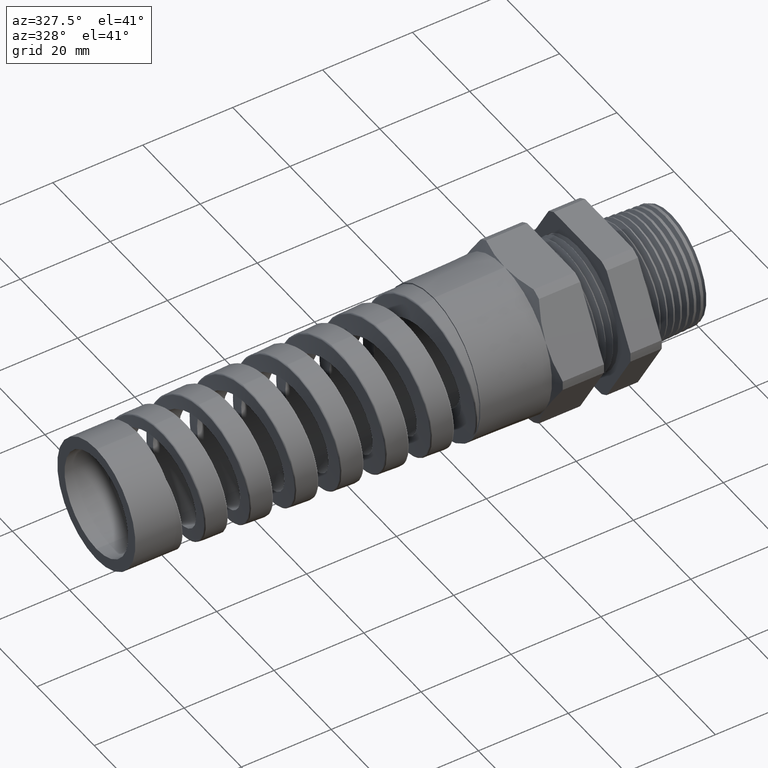
[diagram: clean part render]
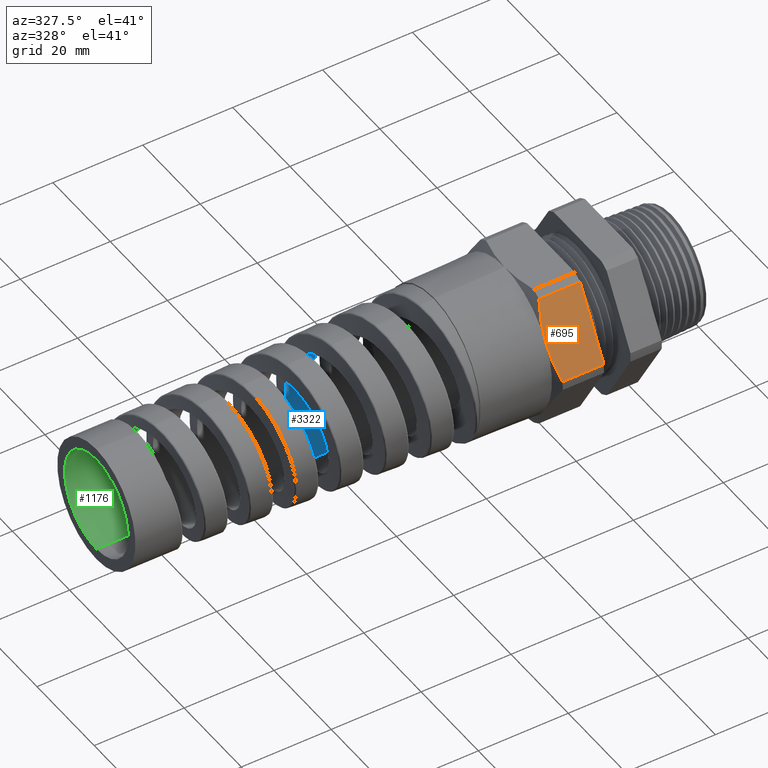
[diagram: same view with three faces highlighted in distinct colors, each labeled with its STEP entity id]
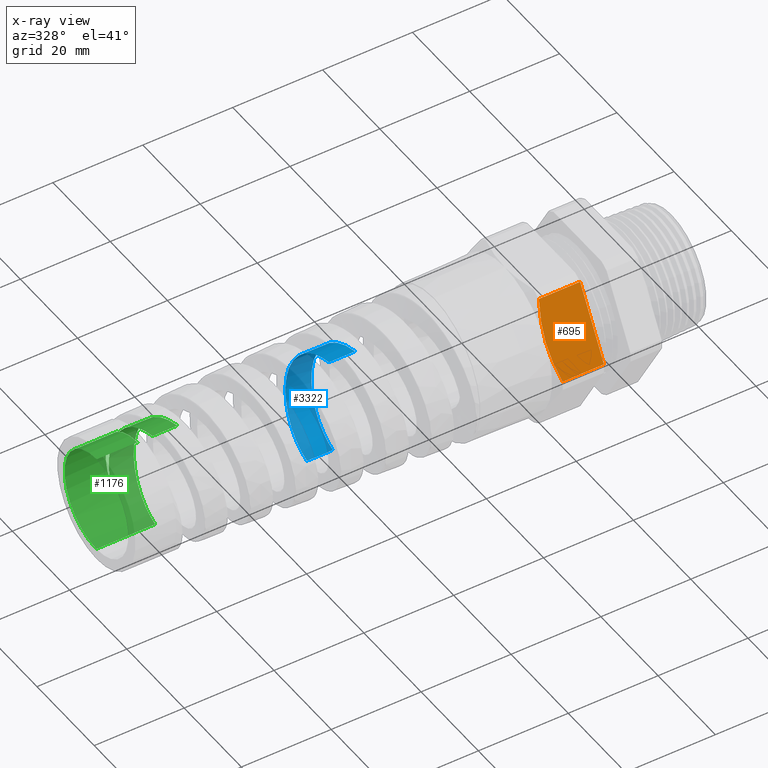
[diagram: x-ray of the same camera — body ghosted, the three highlighted faces saturated]
A machine part, auxiliary view with three faces highlighted in distinct colors.
The next image is the same camera in x-ray (body ghosted, the three faces saturated) — at least one of them is partly hidden behind the body in this view.
Their STEP definitions:

[orange] entity #695 — the highlighted planar face has unit normal (0, -0.866, 0.5).
#646 = ORIENTED_EDGE ( 'NONE', *, *, #671, .T. ) ;
#671 = EDGE_CURVE ( 'NONE', #2977, #2855, #2004, .T. ) ;
#678 = ORIENTED_EDGE ( 'NONE', *, *, #711, .F. ) ;
#682 = EDGE_LOOP ( 'NONE', ( #678, #646, #13837, #725, #724 ) ) ;
#695 = ADVANCED_FACE ( 'NONE', ( #2030 ), #2025, .T. ) ;
#706 = VERTEX_POINT ( 'NONE', #2063 ) ;
#711 = EDGE_CURVE ( 'NONE', #2977, #706, #2061, .T. ) ;
#724 = ORIENTED_EDGE ( 'NONE', *, *, #727, .T. ) ;
#725 = ORIENTED_EDGE ( 'NONE', *, *, #761, .T. ) ;
#727 = EDGE_CURVE ( 'NONE', #1653, #706, #2087, .T. ) ;
#761 = EDGE_CURVE ( 'NONE', #1647, #1653, #2279, .T. ) ;
#1647 = VERTEX_POINT ( 'NONE', #9703 ) ;
#1653 = VERTEX_POINT ( 'NONE', #9809 ) ;
#1996 = CARTESIAN_POINT ( 'NONE',  ( -0.9125000000000002000, -0.5629165124598850500, 0.3249999999999999600 ) ) ;
#1997 = CARTESIAN_POINT ( 'NONE',  ( -0.9125000000000004200, -0.5351819839639024900, 0.3730376124790081300 ) ) ;
#1998 = CARTESIAN_POINT ( 'NONE',  ( -0.9083465192945224800, -0.5076765033783838800, 0.4206785023397256500 ) ) ;
#1999 = CARTESIAN_POINT ( 'NONE',  ( -0.8928224553762588200, -0.4530635366525169200, 0.5152709354609957800 ) ) ;
#2000 = CARTESIAN_POINT ( 'NONE',  ( -0.8814868053153364100, -0.4259541240880419500, 0.5622258153860125700 ) ) ;
#2001 = CARTESIAN_POINT ( 'NONE',  ( -0.8674666790032094000, -0.3989927496919438700, 0.6089242856819410100 ) ) ;
#2004 = B_SPLINE_CURVE_WITH_KNOTS ( 'NONE', 3,
 ( #2001, #2000, #1999, #1998, #1997, #1996 ),
 .UNSPECIFIED., .F., .F.,
 ( 4, 2, 4 ),
 ( 2.361308568637535600E-007, 0.004201502711991014900, 0.008402769293125167400 ),
 .UNSPECIFIED. ) ;
#2021 = DIRECTION ( 'NONE',  ( 0.0000000000000000000, -0.5000000000000000000, -0.8660254037844386000 ) ) ;
#2022 = DIRECTION ( 'NONE',  ( 0.0000000000000000000, -0.8660254037844387100, 0.5000000000000001100 ) ) ;
#2023 = CARTESIAN_POINT ( 'NONE',  ( -2.992185896283379200, -0.3989927496919439800, 0.6089242856819407900 ) ) ;
#2024 = AXIS2_PLACEMENT_3D ( 'NONE', #2023, #2022, #2021 ) ;
#2025 = PLANE ( 'NONE',  #2024 ) ;
#2030 = FACE_OUTER_BOUND ( 'NONE', #682, .T. ) ;
#2058 = DIRECTION ( 'NONE',  ( 1.000000000000000000, 0.0000000000000000000, 0.0000000000000000000 ) ) ;
#2059 = VECTOR ( 'NONE', #2058, 39.37007874015748100 ) ;
#2060 = CARTESIAN_POINT ( 'NONE',  ( -2.992185896283379200, -0.3989927496919437600, 0.6089242856819410100 ) ) ;
#2061 = LINE ( 'NONE', #2060, #2059 ) ;
#2063 = CARTESIAN_POINT ( 'NONE',  ( -0.5058333333333336900, -0.3989927496919437600, 0.6089242856819410100 ) ) ;
#2084 = DIRECTION ( 'NONE',  ( 0.0000000000000000000, 0.5000000000000000000, 0.8660254037844386000 ) ) ;
#2085 = VECTOR ( 'NONE', #2084, 39.37007874015748100 ) ;
#2086 = CARTESIAN_POINT ( 'NONE',  ( -0.5058333333333334700, -0.4237915124598847800, 0.5659715686030198900 ) ) ;
#2087 = LINE ( 'NONE', #2086, #2085 ) ;
#2276 = DIRECTION ( 'NONE',  ( 1.000000000000000000, 0.0000000000000000000, 0.0000000000000000000 ) ) ;
#2277 = VECTOR ( 'NONE', #2276, 39.37007874015748100 ) ;
#2278 = CARTESIAN_POINT ( 'NONE',  ( -2.992185896283379200, -0.7268402752278255700, 0.04107571431805911300 ) ) ;
#2279 = LINE ( 'NONE', #2278, #2277 ) ;
#2855 = VERTEX_POINT ( 'NONE', #10189 ) ;
#2977 = VERTEX_POINT ( 'NONE', #10395 ) ;
#9703 = CARTESIAN_POINT ( 'NONE',  ( -0.8674666790032094000, -0.7268402752278256800, 0.04107571431805912000 ) ) ;
#9809 = CARTESIAN_POINT ( 'NONE',  ( -0.5058333333333336900, -0.7268402752278255700, 0.04107571431805911300 ) ) ;
#10189 = CARTESIAN_POINT ( 'NONE',  ( -0.9125000000000002000, -0.5629165124598850500, 0.3249999999999999600 ) ) ;
#10395 = CARTESIAN_POINT ( 'NONE',  ( -0.8674666790032094000, -0.3989927496919438700, 0.6089242856819410100 ) ) ;
#13209 = CARTESIAN_POINT ( 'NONE',  ( -0.8674666790032094000, -0.7268402752278256800, 0.04107571431805912000 ) ) ;
#13210 = CARTESIAN_POINT ( 'NONE',  ( -0.8814205714001800400, -0.7000062718228485800, 0.08755357158595522500 ) ) ;
#13211 = CARTESIAN_POINT ( 'NONE',  ( -0.8927551590989972800, -0.6729577337251735300, 0.1344030138415908400 ) ) ;
#13212 = CARTESIAN_POINT ( 'NONE',  ( -0.9044328033704855900, -0.6319488438240192800, 0.2054324947123887800 ) ) ;
#13213 = CARTESIAN_POINT ( 'NONE',  ( -0.9074375322794263600, -0.6182064968433951300, 0.2292349378980705900 ) ) ;
#13214 = CARTESIAN_POINT ( 'NONE',  ( -0.9114778356147184000, -0.5905605188772367100, 0.2771191763603863000 ) ) ;
#13215 = CARTESIAN_POINT ( 'NONE',  ( -0.9125000000000004200, -0.5766899915409090500, 0.3011436344346789000 ) ) ;
#13216 = CARTESIAN_POINT ( 'NONE',  ( -0.9125000000000002000, -0.5629165124598850500, 0.3249999999999999600 ) ) ;
#13219 = B_SPLINE_CURVE_WITH_KNOTS ( 'NONE', 3,
 ( #13216, #13215, #13214, #13213, #13212, #13211, #13210, #13209 ),
 .UNSPECIFIED., .F., .F.,
 ( 4, 2, 2, 4 ),
 ( 0.008402769293125167400, 0.01048919587064711100, 0.01257562244816905700, 0.01674847560321295400 ),
 .UNSPECIFIED. ) ;
#13837 = ORIENTED_EDGE ( 'NONE', *, *, #13840, .T. ) ;
#13840 = EDGE_CURVE ( 'NONE', #2855, #1647, #13219, .T. ) ;

[blue] entity #3322 — the highlighted cylindrical surface (partial cylindrical patch) has radius 11.1145 mm, axis along (1, 0, 0).
#3139 = VERTEX_POINT ( 'NONE', #10824 ) ;
#3146 = VERTEX_POINT ( 'NONE', #10911 ) ;
#3255 = VERTEX_POINT ( 'NONE', #11042 ) ;
#3258 = EDGE_CURVE ( 'NONE', #3255, #3259, #11121, .T. ) ;
#3259 = VERTEX_POINT ( 'NONE', #11117 ) ;
#3263 = EDGE_CURVE ( 'NONE', #3139, #3146, #11137, .T. ) ;
#3269 = EDGE_CURVE ( 'NONE', #3259, #3146, #11249, .T. ) ;
#3272 = ORIENTED_EDGE ( 'NONE', *, *, #3269, .F. ) ;
#3315 = EDGE_LOOP ( 'NONE', ( #3318, #3319, #3316, #3272 ) ) ;
#3316 = ORIENTED_EDGE ( 'NONE', *, *, #3263, .T. ) ;
#3318 = ORIENTED_EDGE ( 'NONE', *, *, #3258, .F. ) ;
#3319 = ORIENTED_EDGE ( 'NONE', *, *, #3325, .F. ) ;
#3322 = ADVANCED_FACE ( 'NONE', ( #11474 ), #11510, .F. ) ;
#3325 = EDGE_CURVE ( 'NONE', #3139, #3255, #11625, .T. ) ;
#10824 = CARTESIAN_POINT ( 'NONE',  ( -2.645293719206378600, 6.648208203331390900E-016, -0.4375801833083611300 ) ) ;
#10911 = CARTESIAN_POINT ( 'NONE',  ( -2.418607193346962600, -1.344581434381629500E-015, -0.4375801833083611800 ) ) ;
#11042 = CARTESIAN_POINT ( 'NONE',  ( -2.451956386114949800, 6.440139562001444600E-013, 0.4375801833083609600 ) ) ;
#11117 = CARTESIAN_POINT ( 'NONE',  ( -2.224074186770075300, -4.659743002380564000E-013, 0.4375801833083609600 ) ) ;
#11118 = DIRECTION ( 'NONE',  ( 1.000000000000000000, 0.0000000000000000000, 0.0000000000000000000 ) ) ;
#11119 = VECTOR ( 'NONE', #11118, 39.37007874015748100 ) ;
#11120 = CARTESIAN_POINT ( 'NONE',  ( 0.4924815508901369000, 5.358811708588965500E-017, 0.4375801833083611800 ) ) ;
#11121 = LINE ( 'NONE', #11120, #11119 ) ;
#11134 = DIRECTION ( 'NONE',  ( 1.000000000000000000, 0.0000000000000000000, 0.0000000000000000000 ) ) ;
#11135 = VECTOR ( 'NONE', #11134, 39.37007874015748100 ) ;
#11136 = CARTESIAN_POINT ( 'NONE',  ( 0.4924815508901369000, 0.0000000000000000000, -0.4375801833083611800 ) ) ;
#11137 = LINE ( 'NONE', #11136, #11135 ) ;
#11204 = CARTESIAN_POINT ( 'NONE',  ( -2.398346192510411700, 0.1409797265216398100, -0.4152330331121610900 ) ) ;
#11205 = CARTESIAN_POINT ( 'NONE',  ( -2.390252763436925100, 0.1938088166490437600, -0.3933597560335053100 ) ) ;
#11206 = CARTESIAN_POINT ( 'NONE',  ( -2.386147924442064000, 0.2195138596860539100, -0.3796132286527475500 ) ) ;
#11207 = CARTESIAN_POINT ( 'NONE',  ( -2.378064404682331800, 0.2670069977861727600, -0.3478502567134979500 ) ) ;
#11208 = CARTESIAN_POINT ( 'NONE',  ( -2.374047167834135900, 0.2890621710701613000, -0.3297658240553543700 ) ) ;
#11209 = CARTESIAN_POINT ( 'NONE',  ( -2.367945029969659800, 0.3195490278295759500, -0.2992847152729032900 ) ) ;
#11210 = CARTESIAN_POINT ( 'NONE',  ( -2.365893727874762900, 0.3292922452920423200, -0.2885285629697859100 ) ) ;
#11211 = CARTESIAN_POINT ( 'NONE',  ( -2.361835383700670000, 0.3474788796195634700, -0.2663466588437277700 ) ) ;
#11212 = CARTESIAN_POINT ( 'NONE',  ( -2.357799529895269900, 0.3644785914798471800, -0.2433934515236004200 ) ) ;
#11214 = CARTESIAN_POINT ( 'NONE',  ( -2.353768176452134300, 0.3791443772529439800, -0.2189303050135578100 ) ) ;
#11215 = CARTESIAN_POINT ( 'NONE',  ( -2.349720016441756400, 0.3926302557018207000, -0.1937070457246590200 ) ) ;
#11216 = CARTESIAN_POINT ( 'NONE',  ( -2.347681118604471700, 0.3988004811834448000, -0.1806733637654023600 ) ) ;
#11217 = CARTESIAN_POINT ( 'NONE',  ( -2.341553418887257500, 0.4153572196324020700, -0.1406694078060817300 ) ) ;
#11218 = CARTESIAN_POINT ( 'NONE',  ( -2.337533615277968700, 0.4236113393665300000, -0.1133292289526032500 ) ) ;
#11219 = CARTESIAN_POINT ( 'NONE',  ( -2.331479364922903300, 0.4319572085217713900, -0.07136387649180464500 ) ) ;
#11220 = CARTESIAN_POINT ( 'NONE',  ( -2.329457386174297500, 0.4340618253538948700, -0.05721507895462288300 ) ) ;
#11221 = CARTESIAN_POINT ( 'NONE',  ( -2.325386302006614800, 0.4368818654670453300, -0.02859141681297691600 ) ) ;
#11223 = CARTESIAN_POINT ( 'NONE',  ( -2.323335508287695200, 0.4375876176683435900, -0.01410437211021520000 ) ) ;
#11224 = CARTESIAN_POINT ( 'NONE',  ( -2.317250565925479800, 0.4375651351513660800, 0.02889511765938766400 ) ) ;
#11225 = CARTESIAN_POINT ( 'NONE',  ( -2.313237545678534800, 0.4347595264045061600, 0.05726651079244947400 ) ) ;
#11226 = CARTESIAN_POINT ( 'NONE',  ( -2.307163397774913100, 0.4263888124072444100, 0.09936658410414958600 ) ) ;
#11227 = CARTESIAN_POINT ( 'NONE',  ( -2.305120959797221800, 0.4228815627377447400, 0.1133820905773733900 ) ) ;
#11228 = CARTESIAN_POINT ( 'NONE',  ( -2.301039114982489600, 0.4145002825019206700, 0.1409745734983469900 ) ) ;
#11229 = CARTESIAN_POINT ( 'NONE',  ( -2.299013442579916700, 0.4096607352748044000, 0.1544611555730091000 ) ) ;
#11230 = CARTESIAN_POINT ( 'NONE',  ( -2.292954320094752900, 0.3932546233459794400, 0.1940160229770894200 ) ) ;
#11231 = CARTESIAN_POINT ( 'NONE',  ( -2.288937749022119700, 0.3798180580742330200, 0.2191876705583497800 ) ) ;
#11232 = CARTESIAN_POINT ( 'NONE',  ( -2.282827208257586900, 0.3558285206792206100, 0.2550874840724078300 ) ) ;
#11233 = CARTESIAN_POINT ( 'NONE',  ( -2.280778421860559600, 0.3471899061597496500, 0.2667222923236493600 ) ) ;
#11234 = CARTESIAN_POINT ( 'NONE',  ( -2.276723250917349600, 0.3290024044846763800, 0.2888581485866366100 ) ) ;
#11235 = CARTESIAN_POINT ( 'NONE',  ( -2.274705976046533800, 0.3194107678713575300, 0.2994266610731304300 ) ) ;
#11236 = CARTESIAN_POINT ( 'NONE',  ( -2.270672860093320400, 0.2992484012404994500, 0.3195777813750179700 ) ) ;
#11237 = CARTESIAN_POINT ( 'NONE',  ( -2.268656878997378400, 0.2886776793418068300, 0.3291603691100280500 ) ) ;
#11238 = CARTESIAN_POINT ( 'NONE',  ( -2.264605978687373800, 0.2665463308708521700, 0.3473246386913936800 ) ) ;
#11239 = CARTESIAN_POINT ( 'NONE',  ( -2.262560765868366600, 0.2549244443722611900, 0.3559459019731208200 ) ) ;
#11240 = CARTESIAN_POINT ( 'NONE',  ( -2.256443859404348100, 0.2189784925004206200, 0.3799407838460676600 ) ) ;
#11241 = CARTESIAN_POINT ( 'NONE',  ( -2.252423290649106800, 0.1937911365909978400, 0.3933647964552190500 ) ) ;
#11242 = CARTESIAN_POINT ( 'NONE',  ( -2.246366954525814000, 0.1542405739381764500, 0.4097436697463767700 ) ) ;
#11243 = CARTESIAN_POINT ( 'NONE',  ( -2.244343629921924600, 0.1407600870301490800, 0.4145726724350427000 ) ) ;
#11244 = CARTESIAN_POINT ( 'NONE',  ( -2.240267294784106200, 0.1131908878280480800, 0.4229322945145789800 ) ) ;
#11245 = CARTESIAN_POINT ( 'NONE',  ( -2.238221391542500900, 0.09914861707449286500, 0.4264398380972246900 ) ) ;
#11246 = CARTESIAN_POINT ( 'NONE',  ( -2.232142136563266100, 0.05701877429126128700, 0.4347932198671823300 ) ) ;
#11247 = CARTESIAN_POINT ( 'NONE',  ( -2.228127029726961500, 0.02864690172921067700, 0.4375801833083918200 ) ) ;
#11248 = CARTESIAN_POINT ( 'NONE',  ( -2.224074186770075300, -4.659743002380564000E-013, 0.4375801833083609600 ) ) ;
#11249 = B_SPLINE_CURVE_WITH_KNOTS ( 'NONE', 3,
 ( #11248, #11247, #11246, #11245, #11244, #11243, #11242, #11241, #11240, #11239, #11238, #11237, #11236, #11235, #11234, #11233, #11232, #11231, #11230, #11229, #11228, #11227, #11226, #11225, #11224, #11223, #11221, #11220, #11219, #11218, #11217, #11216, #11215, #11214, #11212, #11211, #11210, #11209, #11208, #11207, #11206, #11205, #11204, #11287, #11286, #11285, #11284, #11283, #11282 ),
 .UNSPECIFIED., .F., .F.,
 ( 4, 2, 2, 2, 2, 2, 2, 2, 2, 2, 2, 2, 2, 2, 2, 2, 2, 1, 2, 2, 2, 2, 2, 2, 4 ),
 ( 0.1758979727491868400, 0.1780917402986888800, 0.1791886240734399100, 0.1802855078481909500, 0.1824792753976930100, 0.1835761591724440200, 0.1846730429471950500, 0.1857699267219460900, 0.1868668104966970900, 0.1890605780461991600, 0.1901574618209501700, 0.1912543455957012000, 0.1934481131452032400, 0.1945449969199542800, 0.1956418806947053100, 0.1978356482442073500, 0.1989325320189583900, 0.2000294157937093900, 0.2011262995684604300, 0.2022231833432114300, 0.2044169508927135000, 0.2066107184422155400, 0.2088044859917175800, 0.2099013697664686200, 0.2109982535412196500 ),
 .UNSPECIFIED. ) ;
#11282 = CARTESIAN_POINT ( 'NONE',  ( -2.418607193346962600, -1.344581434381629500E-015, -0.4375801833083611800 ) ) ;
#11283 = CARTESIAN_POINT ( 'NONE',  ( -2.416589173165085000, 0.01425730503454112700, -0.4375801833083611800 ) ) ;
#11284 = CARTESIAN_POINT ( 'NONE',  ( -2.414568452122664700, 0.02853192730791464700, -0.4368850604459306700 ) ) ;
#11285 = CARTESIAN_POINT ( 'NONE',  ( -2.410504228588291800, 0.05711410178311229100, -0.4340744248331810400 ) ) ;
#11286 = CARTESIAN_POINT ( 'NONE',  ( -2.408452925733592900, 0.07147378727454904700, -0.4319419904575880800 ) ) ;
#11287 = CARTESIAN_POINT ( 'NONE',  ( -2.402361707514088200, 0.1136977735775274700, -0.4235246242691196300 ) ) ;
#11474 = FACE_OUTER_BOUND ( 'NONE', #3315, .T. ) ;
#11506 = DIRECTION ( 'NONE',  ( 0.0000000000000000000, 0.0000000000000000000, -1.000000000000000000 ) ) ;
#11507 = DIRECTION ( 'NONE',  ( 1.000000000000000000, 0.0000000000000000000, 0.0000000000000000000 ) ) ;
#11508 = CARTESIAN_POINT ( 'NONE',  ( 0.4924815508901369000, 0.0000000000000000000, 0.0000000000000000000 ) ) ;
#11509 = AXIS2_PLACEMENT_3D ( 'NONE', #11508, #11507, #11506 ) ;
#11510 = CYLINDRICAL_SURFACE ( 'NONE', #11509, 0.4375801833083611800 ) ;
#11587 = CARTESIAN_POINT ( 'NONE',  ( -2.490201322154041100, 0.2548992198843837400, 0.3559588210636516200 ) ) ;
#11588 = CARTESIAN_POINT ( 'NONE',  ( -2.492215199796701700, 0.2664223184236075800, 0.3474247455322293000 ) ) ;
#11589 = CARTESIAN_POINT ( 'NONE',  ( -2.496275756121891100, 0.2887410546257527200, 0.3291100255780014000 ) ) ;
#11590 = CARTESIAN_POINT ( 'NONE',  ( -2.498299243827221800, 0.2994062253594584900, 0.3194317953645449700 ) ) ;
#11591 = CARTESIAN_POINT ( 'NONE',  ( -2.504332023140976500, 0.3297208581960139900, 0.2890985020597801000 ) ) ;
#11592 = CARTESIAN_POINT ( 'NONE',  ( -2.508321025912350500, 0.3478130964536684200, 0.2670683067880919600 ) ) ;
#11593 = CARTESIAN_POINT ( 'NONE',  ( -2.514371941672716800, 0.3717317236885999100, 0.2312956892388474100 ) ) ;
#11594 = CARTESIAN_POINT ( 'NONE',  ( -2.516410403062543400, 0.3791939789180763800, 0.2188483843056004700 ) ) ;
#11595 = CARTESIAN_POINT ( 'NONE',  ( -2.520450624090737600, 0.3927284125629626500, 0.1935124877796514400 ) ) ;
#11596 = CARTESIAN_POINT ( 'NONE',  ( -2.522458803790249800, 0.3988320549367373500, 0.1805896733785984100 ) ) ;
#11597 = CARTESIAN_POINT ( 'NONE',  ( -2.528474806352936100, 0.4151946577905870600, 0.1410769236048825000 ) ) ;
#11598 = CARTESIAN_POINT ( 'NONE',  ( -2.532471643591502500, 0.4235240334598134900, 0.1137494577380126400 ) ) ;
#11599 = CARTESIAN_POINT ( 'NONE',  ( -2.540599142882079300, 0.4348048583809003800, 0.05706383427466379900 ) ) ;
#11600 = CARTESIAN_POINT ( 'NONE',  ( -2.544603643208835000, 0.4375743530058959800, 0.02859704427373112700 ) ) ;
#11601 = CARTESIAN_POINT ( 'NONE',  ( -2.550618340109744400, 0.4375830847754760800, -0.01416449342346358700 ) ) ;
#11602 = CARTESIAN_POINT ( 'NONE',  ( -2.552624799771857900, 0.4368912025108480100, -0.02843453699521914700 ) ) ;
#11603 = CARTESIAN_POINT ( 'NONE',  ( -2.556661311211549900, 0.4340885814241043400, -0.05700481736411480700 ) ) ;
#11604 = CARTESIAN_POINT ( 'NONE',  ( -2.558699722496807100, 0.4319603882928193000, -0.07136263809916890100 ) ) ;
#11605 = CARTESIAN_POINT ( 'NONE',  ( -2.564754834242778200, 0.4235534651230024000, -0.1135905999279206600 ) ) ;
#11606 = CARTESIAN_POINT ( 'NONE',  ( -2.568747085369354400, 0.4152695990348225200, -0.1408699800005639400 ) ) ;
#11607 = CARTESIAN_POINT ( 'NONE',  ( -2.576785595921736500, 0.3934189865104891200, -0.1936870986951923800 ) ) ;
#11608 = CARTESIAN_POINT ( 'NONE',  ( -2.580863513208203800, 0.3796831425995675400, -0.2193926777865259400 ) ) ;
#11609 = CARTESIAN_POINT ( 'NONE',  ( -2.588898725237924700, 0.3479375041507895600, -0.2668931041558498800 ) ) ;
#11610 = CARTESIAN_POINT ( 'NONE',  ( -2.592891574448431300, 0.3298646731185210200, -0.2889480640107470700 ) ) ;
#11611 = CARTESIAN_POINT ( 'NONE',  ( -2.598951153867820300, 0.2994088265872150200, -0.3194324478611842400 ) ) ;
#11612 = CARTESIAN_POINT ( 'NONE',  ( -2.600989117811720200, 0.2886571760742613300, -0.3291795342054377700 ) ) ;
#11613 = CARTESIAN_POINT ( 'NONE',  ( -2.605022673330636100, 0.2664814597223905700, -0.3473755354988314900 ) ) ;
#11614 = CARTESIAN_POINT ( 'NONE',  ( -2.607028501179020600, 0.2550088847828594900, -0.3558792005620913200 ) ) ;
#11615 = CARTESIAN_POINT ( 'NONE',  ( -2.613042320726155100, 0.2194620239126785800, -0.3796384022082828200 ) ) ;
#11616 = CARTESIAN_POINT ( 'NONE',  ( -2.617057095005107300, 0.1941932026285681500, -0.3931904799413072400 ) ) ;
#11617 = CARTESIAN_POINT ( 'NONE',  ( -2.625175409223999600, 0.1408567289980571000, -0.4152940348230196300 ) ) ;
#11618 = CARTESIAN_POINT ( 'NONE',  ( -2.629171158266710800, 0.1135221525674025400, -0.4235591484982800800 ) ) ;
#11619 = CARTESIAN_POINT ( 'NONE',  ( -2.635188137600191100, 0.07157235236357822900, -0.4319225843195852500 ) ) ;
#11620 = CARTESIAN_POINT ( 'NONE',  ( -2.637197431532674100, 0.05742992681443970900, -0.4340332233021172400 ) ) ;
#11621 = CARTESIAN_POINT ( 'NONE',  ( -2.641241124433525700, 0.02882141765450290200, -0.4368665257356326700 ) ) ;
#11622 = CARTESIAN_POINT ( 'NONE',  ( -2.643278274519496500, 0.01433370966053132800, -0.4375801833083609000 ) ) ;
#11623 = CARTESIAN_POINT ( 'NONE',  ( -2.645293719206378600, 6.648208203331390900E-016, -0.4375801833083611300 ) ) ;
#11625 = B_SPLINE_CURVE_WITH_KNOTS ( 'NONE', 3,
 ( #11623, #11622, #11621, #11620, #11619, #11618, #11617, #11616, #11615, #11614, #11613, #11612, #11611, #11610, #11609, #11608, #11607, #11606, #11605, #11604, #11603, #11602, #11601, #11600, #11599, #11598, #11597, #11596, #11595, #11594, #11593, #11592, #11591, #11590, #11589, #11588, #11587, #11666, #11665, #11664, #11663, #11662, #11661, #11660, #11659, #11658, #11657, #11656 ),
 .UNSPECIFIED., .F., .F.,
 ( 4, 2, 2, 2, 2, 2, 2, 2, 2, 2, 2, 2, 2, 2, 2, 2, 2, 2, 2, 2, 2, 2, 2, 4 ),
 ( 0.2694371419840410600, 0.2705328112239996900, 0.2716284804639583800, 0.2738198189438756900, 0.2760111574237929500, 0.2771068266637516400, 0.2782024959037102700, 0.2803938343836275800, 0.2825851728635448400, 0.2847765113434621600, 0.2858721805834207900, 0.2869678498233794200, 0.2891591883032967300, 0.2913505267832140500, 0.2924461960231726800, 0.2935418652631313100, 0.2957332037430486200, 0.2968288729830072500, 0.2979245422229659400, 0.3001158807028832500, 0.3012115499428418800, 0.3023072191828005100, 0.3034028884227592000, 0.3044985576627178300 ),
 .UNSPECIFIED. ) ;
#11656 = CARTESIAN_POINT ( 'NONE',  ( -2.451956386114949800, 6.440139562001444600E-013, 0.4375801833083609600 ) ) ;
#11657 = CARTESIAN_POINT ( 'NONE',  ( -2.453985141834639400, 0.01442255915479124200, 0.4375801833083398700 ) ) ;
#11658 = CARTESIAN_POINT ( 'NONE',  ( -2.456012991653497000, 0.02883584874579099900, 0.4368631873838479400 ) ) ;
#11659 = CARTESIAN_POINT ( 'NONE',  ( -2.460036169041210500, 0.05730003704310356700, 0.4340479886129228700 ) ) ;
#11660 = CARTESIAN_POINT ( 'NONE',  ( -2.462038835008490100, 0.07140471051144697800, 0.4319500880898575800 ) ) ;
#11661 = CARTESIAN_POINT ( 'NONE',  ( -2.466046494497773400, 0.09935910598411780400, 0.4263886482331534200 ) ) ;
#11662 = CARTESIAN_POINT ( 'NONE',  ( -2.468051422302323800, 0.1132088414989260600, 0.4229251306928734600 ) ) ;
#11663 = CARTESIAN_POINT ( 'NONE',  ( -2.472083315526821100, 0.1406461424746494300, 0.4146089369178066500 ) ) ;
#11664 = CARTESIAN_POINT ( 'NONE',  ( -2.474121314224441400, 0.1543050324590754000, 0.4097230114306614200 ) ) ;
#11665 = CARTESIAN_POINT ( 'NONE',  ( -2.480186820136759200, 0.1941355577010200300, 0.3932099837435484300 ) ) ;
#11666 = CARTESIAN_POINT ( 'NONE',  ( -2.484178234100634000, 0.2192772956129342700, 0.3797491218145335200 ) ) ;

[green] entity #1176 — the highlighted cylindrical surface (partial cylindrical patch) has radius 11.1145 mm, axis along (1, 0, 0).
#1027 = EDGE_CURVE ( 'NONE', #1033, #1466, #3821, .T. ) ;
#1033 = VERTEX_POINT ( 'NONE', #3831 ) ;
#1080 = EDGE_LOOP ( 'NONE', ( #1179, #1190, #1202, #1186, #1196, #1201, #1193 ) ) ;
#1174 = EDGE_CURVE ( 'NONE', #1387, #1459, #5253, .T. ) ;
#1176 = ADVANCED_FACE ( 'NONE', ( #5254 ), #5289, .F. ) ;
#1179 = ORIENTED_EDGE ( 'NONE', *, *, #1452, .F. ) ;
#1183 = EDGE_CURVE ( 'NONE', #1453, #1033, #5327, .T. ) ;
#1186 = ORIENTED_EDGE ( 'NONE', *, *, #1174, .F. ) ;
#1190 = ORIENTED_EDGE ( 'NONE', *, *, #1198, .T. ) ;
#1193 = ORIENTED_EDGE ( 'NONE', *, *, #1183, .F. ) ;
#1196 = ORIENTED_EDGE ( 'NONE', *, *, #1386, .F. ) ;
#1198 = EDGE_CURVE ( 'NONE', #1379, #1378, #5365, .T. ) ;
#1201 = ORIENTED_EDGE ( 'NONE', *, *, #1027, .F. ) ;
#1202 = ORIENTED_EDGE ( 'NONE', *, *, #1461, .T. ) ;
#1378 = VERTEX_POINT ( 'NONE', #6319 ) ;
#1379 = VERTEX_POINT ( 'NONE', #6318 ) ;
#1386 = EDGE_CURVE ( 'NONE', #1466, #1387, #6310, .T. ) ;
#1387 = VERTEX_POINT ( 'NONE', #6306 ) ;
#1452 = EDGE_CURVE ( 'NONE', #1379, #1453, #9401, .T. ) ;
#1453 = VERTEX_POINT ( 'NONE', #9387 ) ;
#1459 = VERTEX_POINT ( 'NONE', #9369 ) ;
#1461 = EDGE_CURVE ( 'NONE', #1378, #1459, #9432, .T. ) ;
#1466 = VERTEX_POINT ( 'NONE', #9413 ) ;
#3795 = CARTESIAN_POINT ( 'NONE',  ( -4.030347446686495700, 0.2156037847299557300, 0.3809025348255148400 ) ) ;
#3796 = CARTESIAN_POINT ( 'NONE',  ( -4.034465555998497000, 0.2407646213135835300, 0.3659099325745678900 ) ) ;
#3797 = CARTESIAN_POINT ( 'NONE',  ( -4.037199064064650700, 0.2567982800639904700, 0.3548411644706442300 ) ) ;
#3798 = CARTESIAN_POINT ( 'NONE',  ( -4.041318426538974300, 0.2797344421900685400, 0.3366308907875541500 ) ) ;
#3799 = CARTESIAN_POINT ( 'NONE',  ( -4.042694701812745700, 0.2871935180180139000, 0.3302920845537573000 ) ) ;
#3800 = CARTESIAN_POINT ( 'NONE',  ( -4.045459545407785700, 0.3017309795540371600, 0.3170668602799590600 ) ) ;
#3801 = CARTESIAN_POINT ( 'NONE',  ( -4.046852751471627500, 0.3088311301295168500, 0.3101555785963998100 ) ) ;
#3802 = CARTESIAN_POINT ( 'NONE',  ( -4.053769641889172900, 0.3428899710171018900, 0.2746827503828334100 ) ) ;
#3803 = CARTESIAN_POINT ( 'NONE',  ( -4.059197421568633500, 0.3658785394146276100, 0.2432122933966212600 ) ) ;
#3804 = CARTESIAN_POINT ( 'NONE',  ( -4.066103995122230000, 0.3892948391724313500, 0.2000559341667788900 ) ) ;
#3805 = CARTESIAN_POINT ( 'NONE',  ( -4.067496555735185200, 0.3937222757935018300, 0.1911963938194954900 ) ) ;
#3806 = CARTESIAN_POINT ( 'NONE',  ( -4.070265888522244200, 0.4019208934461628900, 0.1732999909897056100 ) ) ;
#3807 = CARTESIAN_POINT ( 'NONE',  ( -4.071643885636928100, 0.4056988590912604100, 0.1642568387976628400 ) ) ;
#3808 = CARTESIAN_POINT ( 'NONE',  ( -4.075766213995579300, 0.4160893839057450700, 0.1368497992961919300 ) ) ;
#3809 = CARTESIAN_POINT ( 'NONE',  ( -4.078499348466995600, 0.4217625415012489200, 0.1182095587921296600 ) ) ;
#3810 = CARTESIAN_POINT ( 'NONE',  ( -4.083986393158655300, 0.4306098934367153500, 0.08020137703208804500 ) ) ;
#3811 = CARTESIAN_POINT ( 'NONE',  ( -4.086754774818281500, 0.4337930398918192800, 0.06072978908926421300 ) ) ;
#3812 = CARTESIAN_POINT ( 'NONE',  ( -4.092297137115002300, 0.4374952412221090300, 0.02150401472797458500 ) ) ;
#3813 = CARTESIAN_POINT ( 'NONE',  ( -4.095041548541800600, 0.4380093873031916100, 0.001962578922402114700 ) ) ;
#3814 = CARTESIAN_POINT ( 'NONE',  ( -4.100522021369950000, 0.4364502957187929600, -0.03697586305581051400 ) ) ;
#3815 = CARTESIAN_POINT ( 'NONE',  ( -4.103258359853986000, 0.4343768895859240800, -0.05637282052796149800 ) ) ;
#3816 = CARTESIAN_POINT ( 'NONE',  ( -4.108774511731621000, 0.4275907945002282400, -0.09501204954785175100 ) ) ;
#3817 = CARTESIAN_POINT ( 'NONE',  ( -4.111561344708669600, 0.4228416115162430000, -0.1142959747988895600 ) ) ;
#3818 = CARTESIAN_POINT ( 'NONE',  ( -4.119811588587591400, 0.4050262685914961500, -0.1701730425709050400 ) ) ;
#3819 = CARTESIAN_POINT ( 'NONE',  ( -4.125242221728987200, 0.3883868294332296600, -0.2054126898169325900 ) ) ;
#3820 = CARTESIAN_POINT ( 'NONE',  ( -4.130799999999999800, 0.3668392069632160400, -0.2385485549291409000 ) ) ;
#3821 = B_SPLINE_CURVE_WITH_KNOTS ( 'NONE', 3,
 ( #3820, #3819, #3818, #3817, #3816, #3815, #3814, #3813, #3812, #3811, #3810, #3809, #3808, #3807, #3806, #3805, #3804, #3803, #3802, #3801, #3800, #3799, #3798, #3797, #3796, #3795, #3848, #3847, #3846, #3845, #3844, #3843, #3842, #3841, #3840, #3839, #3838, #3837 ),
 .UNSPECIFIED., .F., .F.,
 ( 4, 2, 2, 2, 2, 2, 2, 2, 2, 2, 2, 2, 2, 2, 2, 2, 2, 2, 4 ),
 ( 3.656318114310037700E-017, 0.002995942532262729700, 0.004493913798394076100, 0.005991885064525422900, 0.007489856330656769800, 0.008987827596788115800, 0.01048579886291946300, 0.01123478449598513600, 0.01198377012905081100, 0.01497971266131349400, 0.01572869829437916600, 0.01647768392744484000, 0.01797565519357618600, 0.01872464082664185600, 0.01947362645970752600, 0.02097159772583886600, 0.02246956899197020600, 0.02321855462503587600, 0.02396754025810154600 ),
 .UNSPECIFIED. ) ;
#3831 = CARTESIAN_POINT ( 'NONE',  ( -4.130799999999999800, 0.3668392069632160400, -0.2385485549291409000 ) ) ;
#3837 = CARTESIAN_POINT ( 'NONE',  ( -3.998650479674136900, 9.450363933348216900E-013, 0.4375801833083608500 ) ) ;
#3838 = CARTESIAN_POINT ( 'NONE',  ( -4.000024670956796600, 0.009769160319473457100, 0.4375801833083401400 ) ) ;
#3839 = CARTESIAN_POINT ( 'NONE',  ( -4.001402047058584300, 0.01956292948770529300, 0.4372534135647902500 ) ) ;
#3840 = CARTESIAN_POINT ( 'NONE',  ( -4.004169599572097800, 0.03919988071508023100, 0.4359319043567765900 ) ) ;
#3841 = CARTESIAN_POINT ( 'NONE',  ( -4.005561577682099600, 0.04905515942445613100, 0.4349327242472586500 ) ) ;
#3842 = CARTESIAN_POINT ( 'NONE',  ( -4.009704442234432300, 0.07825323839674198900, 0.4309741446503365100 ) ) ;
#3843 = CARTESIAN_POINT ( 'NONE',  ( -4.012442958076220200, 0.09737518884831734800, 0.4270527550344167500 ) ) ;
#3844 = CARTESIAN_POINT ( 'NONE',  ( -4.017923515825063200, 0.1349421497825981100, 0.4167092501946435500 ) ) ;
#3845 = CARTESIAN_POINT ( 'NONE',  ( -4.020665417704205600, 0.1533871939845762900, 0.4102871838398961000 ) ) ;
#3846 = CARTESIAN_POINT ( 'NONE',  ( -4.024815055628475400, 0.1805279625397198900, 0.3987264331403492200 ) ) ;
#3847 = CARTESIAN_POINT ( 'NONE',  ( -4.026207743892029200, 0.1895079961891761000, 0.3945373665318405200 ) ) ;
#3848 = CARTESIAN_POINT ( 'NONE',  ( -4.028971747034640700, 0.2070311896573933700, 0.3856307828980474200 ) ) ;
#5232 = CARTESIAN_POINT ( 'NONE',  ( -3.869527694534692600, 0.4348060454190558200, 0.05705730914137749400 ) ) ;
#5233 = CARTESIAN_POINT ( 'NONE',  ( -3.861349298806320700, 0.4235234927076778100, 0.1137527352818488900 ) ) ;
#5234 = CARTESIAN_POINT ( 'NONE',  ( -3.857325568344502000, 0.4151929850538781900, 0.1410816963077403700 ) ) ;
#5235 = CARTESIAN_POINT ( 'NONE',  ( -3.851272219925513600, 0.3988304196713443100, 0.1805932554960692200 ) ) ;
#5236 = CARTESIAN_POINT ( 'NONE',  ( -3.849252109212328400, 0.3927270653167898000, 0.1935150935241271300 ) ) ;
#5237 = CARTESIAN_POINT ( 'NONE',  ( -3.845188449686519000, 0.3791941928952060100, 0.2188478999865958500 ) ) ;
#5238 = CARTESIAN_POINT ( 'NONE',  ( -3.843137735947550500, 0.3717316459581661000, 0.2312959229213434300 ) ) ;
#5239 = CARTESIAN_POINT ( 'NONE',  ( -3.837048655613764000, 0.3478099318799736700, 0.2670728048310513400 ) ) ;
#5240 = CARTESIAN_POINT ( 'NONE',  ( -3.833032985823948900, 0.3297168885224250900, 0.2891028031948513800 ) ) ;
#5241 = CARTESIAN_POINT ( 'NONE',  ( -3.824940413020131200, 0.2893002839946564600, 0.3295436284813310100 ) ) ;
#5242 = CARTESIAN_POINT ( 'NONE',  ( -3.820837675450256200, 0.2667712003660379100, 0.3480304121587487500 ) ) ;
#5243 = CARTESIAN_POINT ( 'NONE',  ( -3.812755908636654500, 0.2192716717529995000, 0.3797525182257125400 ) ) ;
#5244 = CARTESIAN_POINT ( 'NONE',  ( -3.808738178793612300, 0.1941305678157075900, 0.3932121538629976800 ) ) ;
#5245 = CARTESIAN_POINT ( 'NONE',  ( -3.802636792585511600, 0.1543055512636911900, 0.4097227456388640200 ) ) ;
#5246 = CARTESIAN_POINT ( 'NONE',  ( -3.800586710099295400, 0.1406450902509692500, 0.4146093576036654600 ) ) ;
#5247 = CARTESIAN_POINT ( 'NONE',  ( -3.796530087277606200, 0.1132042041108737000, 0.4229264344964156500 ) ) ;
#5248 = CARTESIAN_POINT ( 'NONE',  ( -3.792495159992515000, 0.08550266950585792800, 0.4298535165663008300 ) ) ;
#5249 = CARTESIAN_POINT ( 'NONE',  ( -3.788463705485234800, 0.05729451502860839800, 0.4340486722323804200 ) ) ;
#5250 = CARTESIAN_POINT ( 'NONE',  ( -3.784415454520692700, 0.02883303767724697300, 0.4368633278925553300 ) ) ;
#5251 = CARTESIAN_POINT ( 'NONE',  ( -3.782375894198524600, 0.01442527654871233700, 0.4375801833083644600 ) ) ;
#5252 = CARTESIAN_POINT ( 'NONE',  ( -3.780334688658389300, -8.938932109346839300E-014, 0.4375801833083611800 ) ) ;
#5253 = B_SPLINE_CURVE_WITH_KNOTS ( 'NONE', 3,
 ( #5252, #5251, #5250, #5249, #5248, #5247, #5246, #5245, #5244, #5243, #5242, #5241, #5240, #5239, #5238, #5237, #5236, #5235, #5234, #5233, #5232, #5313, #5312, #5311, #5310, #5309, #5308, #5307, #5306, #5305, #5304, #5303, #5302, #5301, #5300, #5299, #5298, #5297, #5296, #5295, #5294, #5293, #5292, #5291, #5290 ),
 .UNSPECIFIED., .F., .F.,
 ( 4, 2, 1, 2, 2, 2, 2, 2, 2, 2, 2, 2, 2, 2, 2, 2, 2, 2, 2, 2, 2, 2, 4 ),
 ( 0.4566876203442981600, 0.4577842917995503800, 0.4588809632548025400, 0.4599776347100547600, 0.4610743061653069800, 0.4632676490758113600, 0.4654609919863158000, 0.4676543348968201800, 0.4687510063520724000, 0.4698476778073246200, 0.4720410207178290500, 0.4742343636283334300, 0.4753310350835856500, 0.4764277065388378700, 0.4786210494493423100, 0.4808143923598467400, 0.4830077352703511200, 0.4841044067256033400, 0.4852010781808555600, 0.4873944210913600000, 0.4895877640018643800, 0.4906844354571166000, 0.4917811069123688200 ),
 .UNSPECIFIED. ) ;
#5254 = FACE_OUTER_BOUND ( 'NONE', #1080, .T. ) ;
#5285 = DIRECTION ( 'NONE',  ( 0.0000000000000000000, 0.0000000000000000000, -1.000000000000000000 ) ) ;
#5286 = DIRECTION ( 'NONE',  ( 1.000000000000000000, 0.0000000000000000000, 0.0000000000000000000 ) ) ;
#5287 = CARTESIAN_POINT ( 'NONE',  ( 0.4924815508901369000, 0.0000000000000000000, 0.0000000000000000000 ) ) ;
#5288 = AXIS2_PLACEMENT_3D ( 'NONE', #5287, #5286, #5285 ) ;
#5289 = CYLINDRICAL_SURFACE ( 'NONE', #5288, 0.4375801833083611800 ) ;
#5290 = CARTESIAN_POINT ( 'NONE',  ( -3.974869205218150900, 4.483368066289615700E-013, -0.4375801833083612400 ) ) ;
#5291 = CARTESIAN_POINT ( 'NONE',  ( -3.972841103230356600, 0.01433248852841533500, -0.4375801833083464200 ) ) ;
#5292 = CARTESIAN_POINT ( 'NONE',  ( -3.970790789749975200, 0.02881882917923378100, -0.4368667463206774600 ) ) ;
#5293 = CARTESIAN_POINT ( 'NONE',  ( -3.966721126747462000, 0.05743035893670425700, -0.4340332162732228300 ) ) ;
#5294 = CARTESIAN_POINT ( 'NONE',  ( -3.964699341987258000, 0.07157375832608550700, -0.4319223678689672100 ) ) ;
#5295 = CARTESIAN_POINT ( 'NONE',  ( -3.958646386454807600, 0.1135249948662093700, -0.4235584541169211700 ) ) ;
#5296 = CARTESIAN_POINT ( 'NONE',  ( -3.954626834519104700, 0.1408583025824168000, -0.4152932286965962400 ) ) ;
#5297 = CARTESIAN_POINT ( 'NONE',  ( -3.946457469670879200, 0.1941876440644532400, -0.3931929375005865900 ) ) ;
#5298 = CARTESIAN_POINT ( 'NONE',  ( -3.942416132294365400, 0.2194644768941432500, -0.3796369710882343500 ) ) ;
#5299 = CARTESIAN_POINT ( 'NONE',  ( -3.936366729157953600, 0.2550109759676099100, -0.3558776986031135800 ) ) ;
#5300 = CARTESIAN_POINT ( 'NONE',  ( -3.934349041838889300, 0.2664829371918512300, -0.3473743455909960000 ) ) ;
#5301 = CARTESIAN_POINT ( 'NONE',  ( -3.930290921541706800, 0.2886565159299638300, -0.3291800534667058700 ) ) ;
#5302 = CARTESIAN_POINT ( 'NONE',  ( -3.928240003331811900, 0.2994076644610009800, -0.3194336072082363300 ) ) ;
#5303 = CARTESIAN_POINT ( 'NONE',  ( -3.922140683543919900, 0.3298668207991482000, -0.2889459220538586600 ) ) ;
#5304 = CARTESIAN_POINT ( 'NONE',  ( -3.918123493927176100, 0.3479398035263746600, -0.2668899440807495100 ) ) ;
#5305 = CARTESIAN_POINT ( 'NONE',  ( -3.910040924527638400, 0.3796834961394793300, -0.2193918683285679400 ) ) ;
#5306 = CARTESIAN_POINT ( 'NONE',  ( -3.905937079112160100, 0.3934192964901687100, -0.1936867499617134200 ) ) ;
#5307 = CARTESIAN_POINT ( 'NONE',  ( -3.897846364004512200, 0.4152710814807069600, -0.1408659960650350000 ) ) ;
#5308 = CARTESIAN_POINT ( 'NONE',  ( -3.893830776627553700, 0.4235543016330326500, -0.1135867078842627100 ) ) ;
#5309 = CARTESIAN_POINT ( 'NONE',  ( -3.887739947916901700, 0.4319602400901972900, -0.07136322764078827100 ) ) ;
#5310 = CARTESIAN_POINT ( 'NONE',  ( -3.885688940373959600, 0.4340885457965509800, -0.05700550406431097200 ) ) ;
#5311 = CARTESIAN_POINT ( 'NONE',  ( -3.881626270558320900, 0.4368914261174506300, -0.02843193399068505100 ) ) ;
#5312 = CARTESIAN_POINT ( 'NONE',  ( -3.879606521949691800, 0.4375832094046530600, -0.01416096729539669000 ) ) ;
#5313 = CARTESIAN_POINT ( 'NONE',  ( -3.873553662921850500, 0.4375741013391906100, 0.02860153763584976500 ) ) ;
#5319 = CARTESIAN_POINT ( 'NONE',  ( -4.489999999999999300, 0.0000000000000000000, 0.0000000000000000000 ) ) ;
#5323 = DIRECTION ( 'NONE',  ( 0.0000000000000000000, 0.0000000000000000000, 1.000000000000000000 ) ) ;
#5324 = DIRECTION ( 'NONE',  ( -1.000000000000000000, 0.0000000000000000000, 0.0000000000000000000 ) ) ;
#5325 = CARTESIAN_POINT ( 'NONE',  ( -4.130799999999999800, 0.0000000000000000000, 0.0000000000000000000 ) ) ;
#5326 = AXIS2_PLACEMENT_3D ( 'NONE', #5325, #5324, #5323 ) ;
#5327 = CIRCLE ( 'NONE', #5326, 0.4375801833083653400 ) ;
#5362 = DIRECTION ( 'NONE',  ( 0.0000000000000000000, 0.0000000000000000000, 1.000000000000000000 ) ) ;
#5363 = DIRECTION ( 'NONE',  ( -1.000000000000000000, 0.0000000000000000000, 0.0000000000000000000 ) ) ;
#5364 = AXIS2_PLACEMENT_3D ( 'NONE', #5319, #5363, #5362 ) ;
#5365 = CIRCLE ( 'NONE', #5364, 0.4375801833083653400 ) ;
#6306 = CARTESIAN_POINT ( 'NONE',  ( -3.780334688658389300, -8.938932109346839300E-014, 0.4375801833083611800 ) ) ;
#6307 = DIRECTION ( 'NONE',  ( 1.000000000000000000, 0.0000000000000000000, 0.0000000000000000000 ) ) ;
#6308 = VECTOR ( 'NONE', #6307, 39.37007874015748100 ) ;
#6309 = CARTESIAN_POINT ( 'NONE',  ( 0.4924815508901369000, 5.358811708588965500E-017, 0.4375801833083611800 ) ) ;
#6310 = LINE ( 'NONE', #6309, #6308 ) ;
#6318 = CARTESIAN_POINT ( 'NONE',  ( -4.489999999999999300, 5.358811708589016600E-017, 0.4375801833083653400 ) ) ;
#6319 = CARTESIAN_POINT ( 'NONE',  ( -4.489999999999999300, 0.0000000000000000000, -0.4375801833083653400 ) ) ;
#9369 = CARTESIAN_POINT ( 'NONE',  ( -3.974869205218150900, 4.483368066289615700E-013, -0.4375801833083612400 ) ) ;
#9387 = CARTESIAN_POINT ( 'NONE',  ( -4.130799999999999800, 5.358811708589016600E-017, 0.4375801833083653400 ) ) ;
#9388 = DIRECTION ( 'NONE',  ( 1.000000000000000000, 0.0000000000000000000, 0.0000000000000000000 ) ) ;
#9390 = VECTOR ( 'NONE', #9388, 39.37007874015748100 ) ;
#9392 = CARTESIAN_POINT ( 'NONE',  ( 0.4924815508901369000, 5.358811708588965500E-017, 0.4375801833083611800 ) ) ;
#9401 = LINE ( 'NONE', #9392, #9390 ) ;
#9413 = CARTESIAN_POINT ( 'NONE',  ( -3.998650479674136900, 9.450363933348216900E-013, 0.4375801833083608500 ) ) ;
#9427 = DIRECTION ( 'NONE',  ( 1.000000000000000000, 0.0000000000000000000, 0.0000000000000000000 ) ) ;
#9429 = VECTOR ( 'NONE', #9427, 39.37007874015748100 ) ;
#9431 = CARTESIAN_POINT ( 'NONE',  ( 0.4924815508901369000, 0.0000000000000000000, -0.4375801833083611800 ) ) ;
#9432 = LINE ( 'NONE', #9431, #9429 ) ;